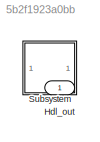
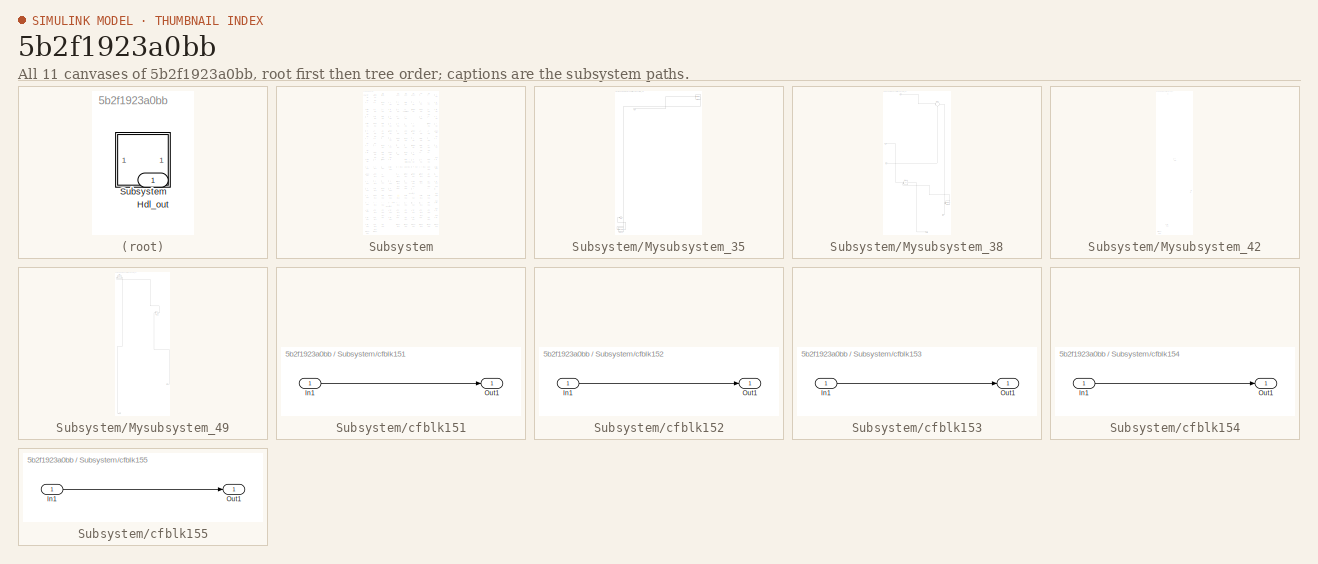
[diagram: thumbnail index - all 11 canvases of the model, root first then tree order]
MODEL slx_5b2f1923a0bb
KIND model
CONFIG AbsTol = auto
CONFIG EnableMultiTasking = off
CONFIG FixedStep = auto
CONFIG MaxStep = auto
CONFIG MinStep = auto
CONFIG RelTol = 1e-3
CONFIG SampleTimeConstraint = Unconstrained
CONFIG SolverName = VariableStepAuto
CONFIG StartTime = 0.0
CONFIG StopTime = 10.0
BLOCK [Outport] Hdl_out
  OutDataTypeStr = uint8
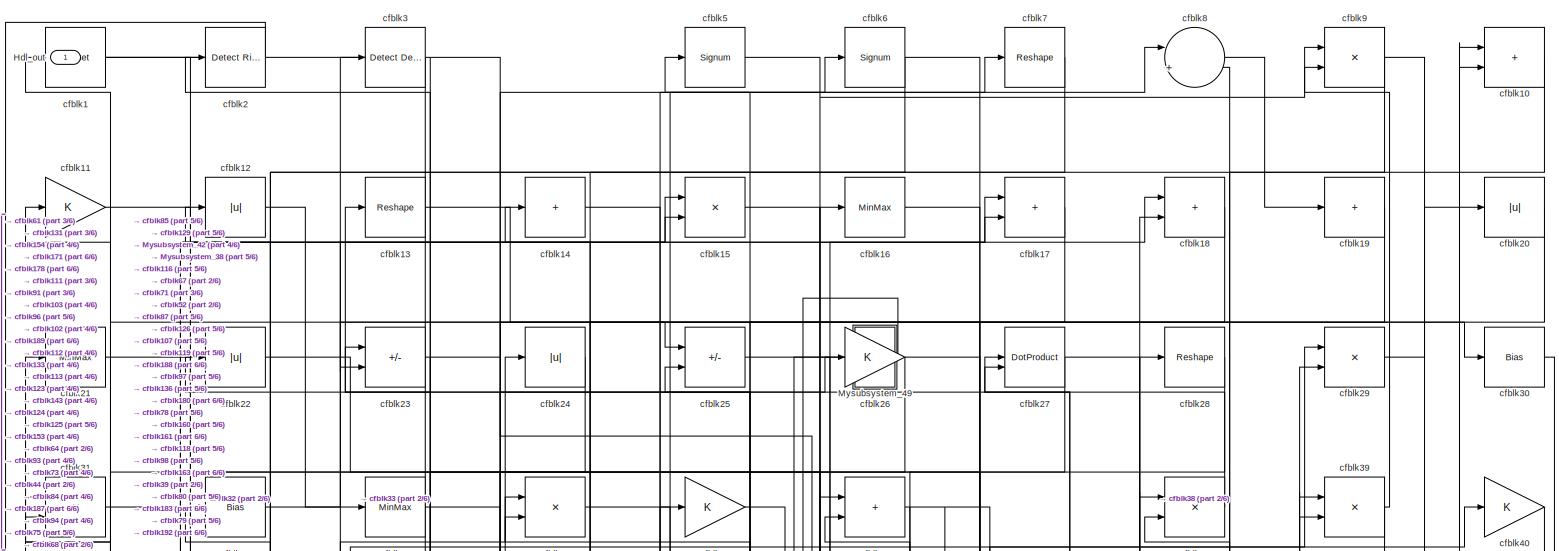
[diagram: Subsystem - part 1/6, full width, top band]
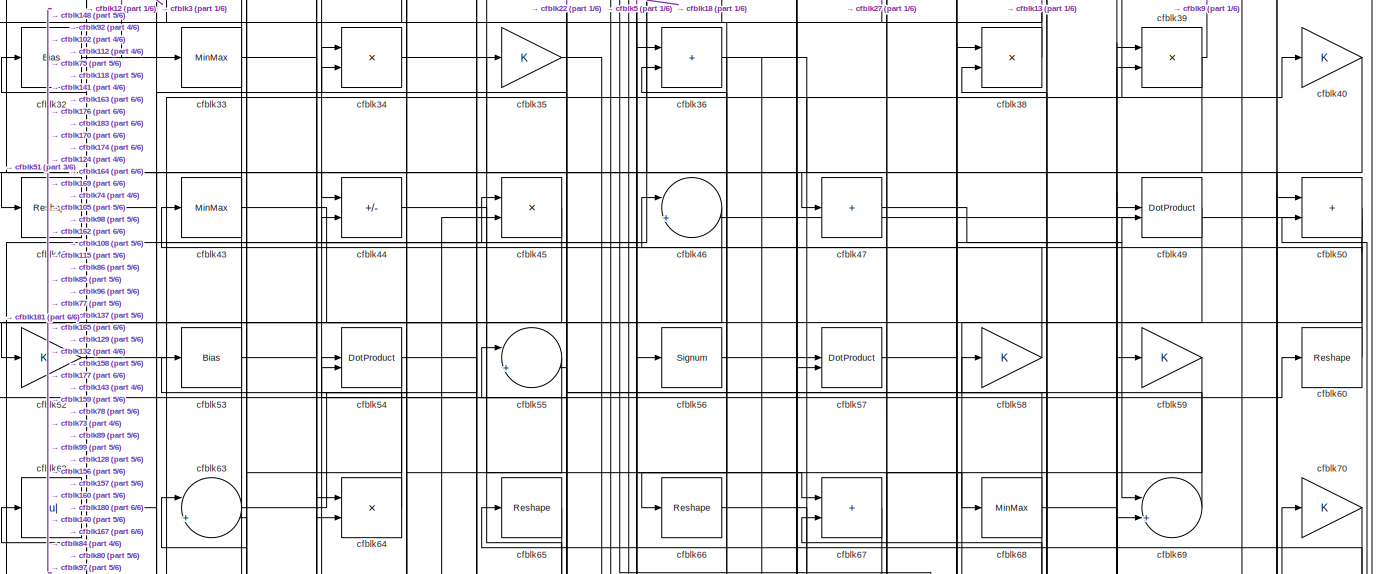
[diagram: Subsystem - part 2/6, full width, top band]
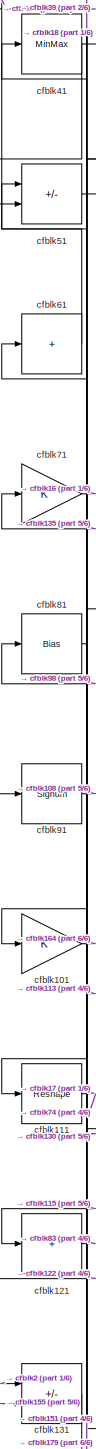
[diagram: Subsystem - part 3/6, middle left region]
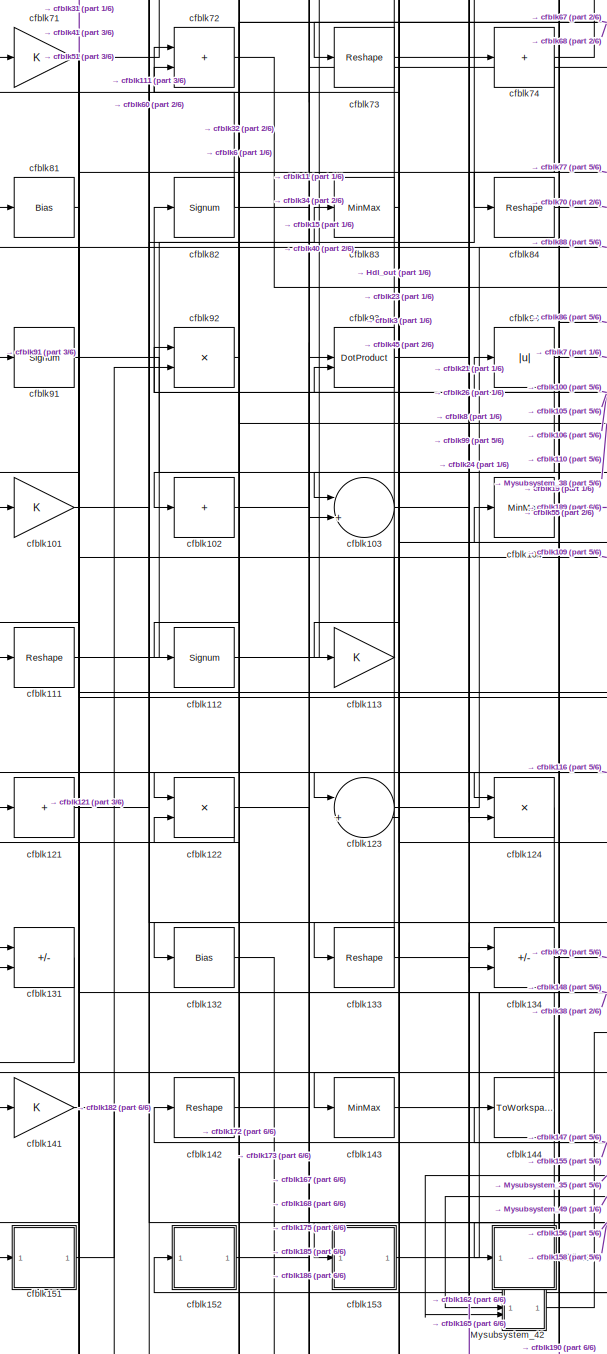
[diagram: Subsystem - part 4/6, middle left region]
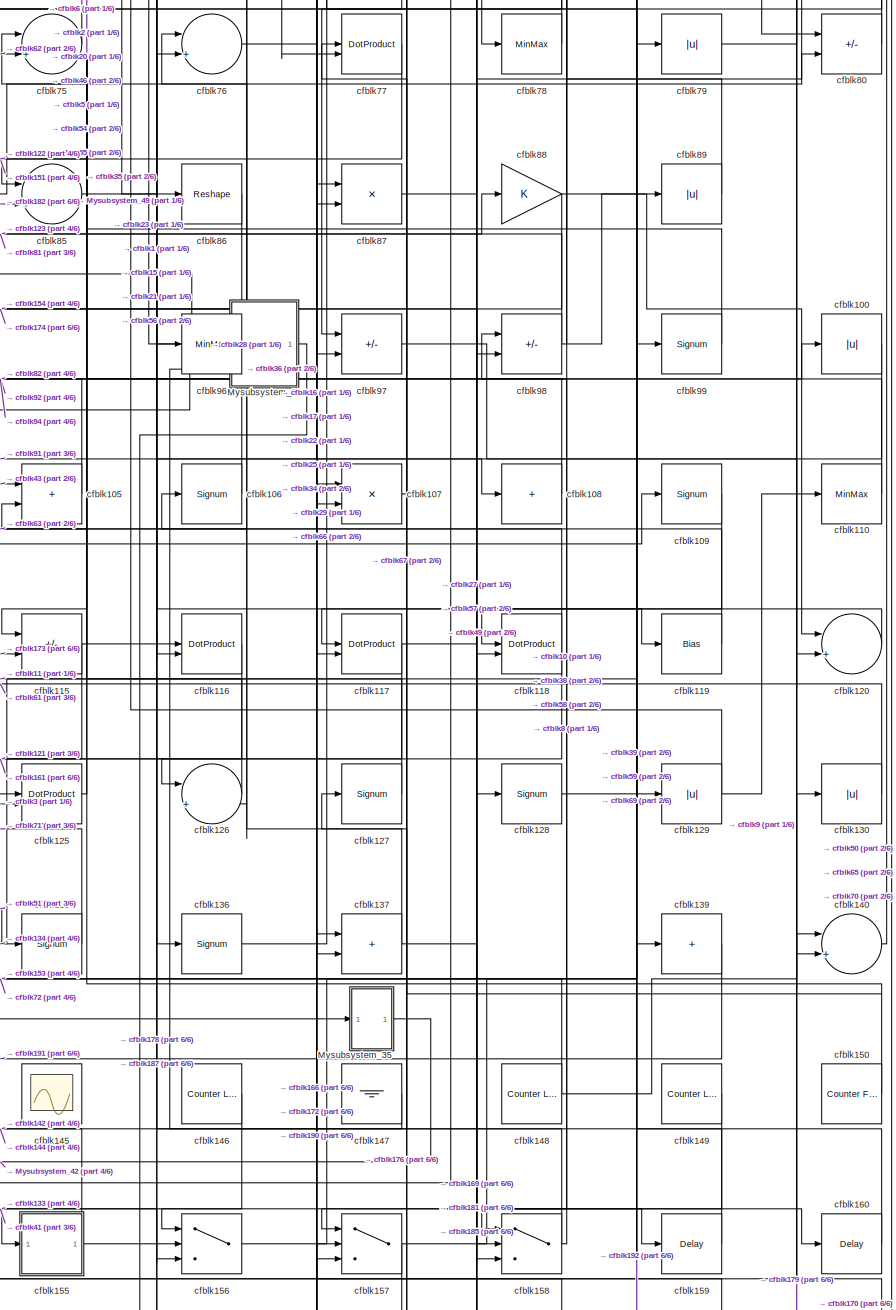
[diagram: Subsystem - part 5/6, middle right region]
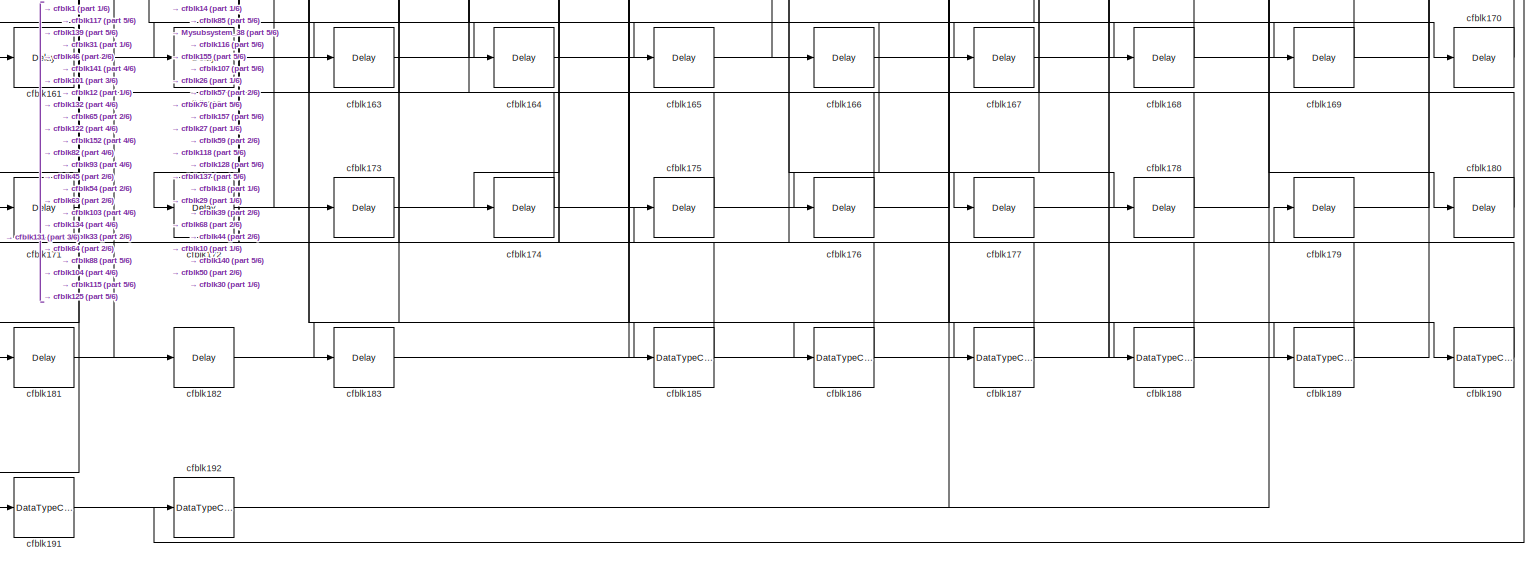
[diagram: Subsystem - part 6/6, full width, bottom band]
BLOCK [SubSystem] Subsystem
BLOCK [Outport] Subsystem/Hdl_out
  OutDataTypeStr = uint8
BLOCK [SubSystem] Subsystem/Mysubsystem_35
  RTWFcnName = Mysubsystem_35
  RTWFcnNameOpts = User specified
  RTWFileNameOpts = Use function name
  RTWSystemCode = Reusable function
  TreatAsAtomicUnit = on
BLOCK [Inport] Subsystem/Mysubsystem_35/In1
BLOCK [Outport] Subsystem/Mysubsystem_35/Out1
BLOCK [DataTypeConversion] Subsystem/Mysubsystem_35/cfblk194
  OutDataTypeStr = uint8
  RndMeth = Floor
  SaturateOnIntegerOverflow = off
BLOCK [MinMax] Subsystem/Mysubsystem_35/cfblk90
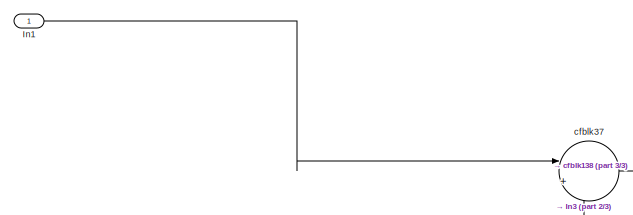
[diagram: Subsystem/Mysubsystem_38 - part 1/3, top center region]
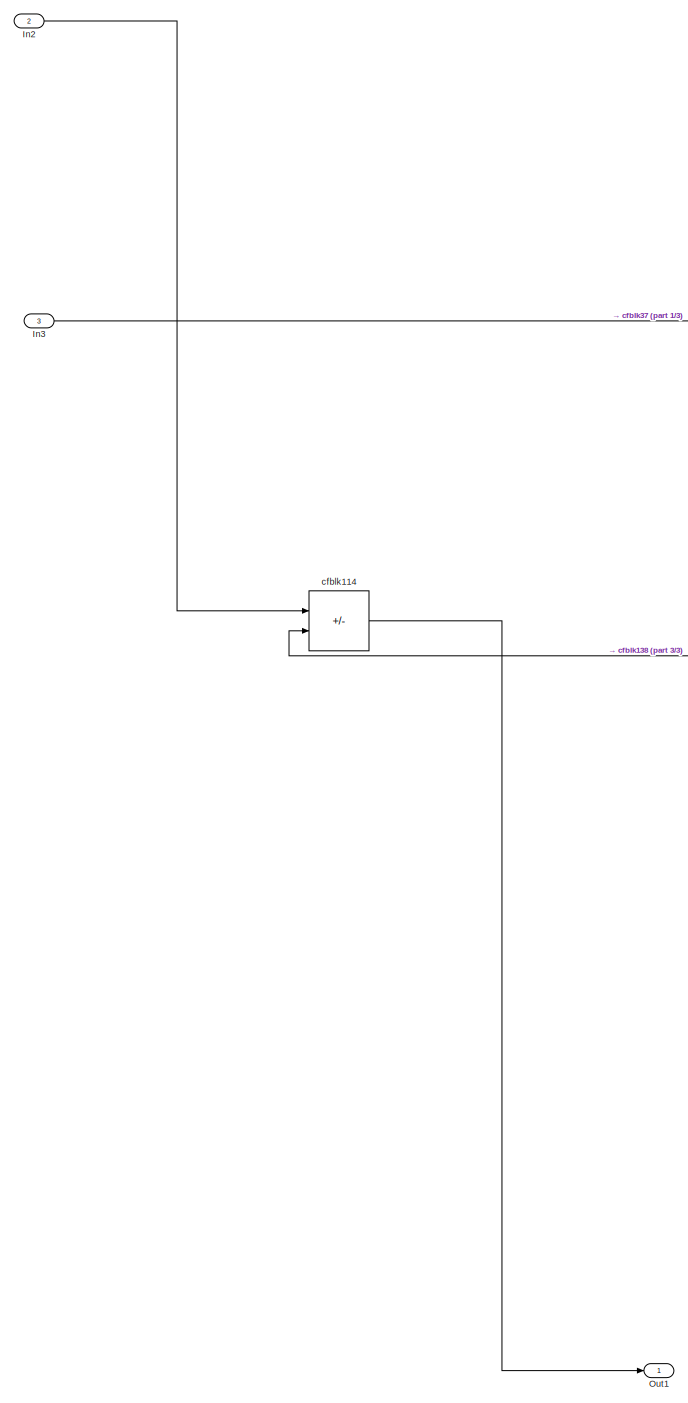
[diagram: Subsystem/Mysubsystem_38 - part 2/3, bottom center region]
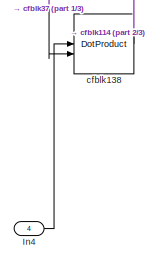
[diagram: Subsystem/Mysubsystem_38 - part 3/3, bottom right region]
BLOCK [SubSystem] Subsystem/Mysubsystem_38
  RTWFcnName = Mysubsystem_38
  RTWFcnNameOpts = User specified
  RTWFileNameOpts = Use function name
  RTWSystemCode = Reusable function
  TreatAsAtomicUnit = on
BLOCK [Inport] Subsystem/Mysubsystem_38/In1
BLOCK [Inport] Subsystem/Mysubsystem_38/In2
  Port = 2
BLOCK [Inport] Subsystem/Mysubsystem_38/In3
  Port = 3
BLOCK [Inport] Subsystem/Mysubsystem_38/In4
  Port = 4
BLOCK [Outport] Subsystem/Mysubsystem_38/Out1
BLOCK [Sum] Subsystem/Mysubsystem_38/cfblk114
  IconShape = rectangular
  Inputs = +-
BLOCK [DotProduct] Subsystem/Mysubsystem_38/cfblk138
  OutDataTypeStr = Inherit: Inherit via internal rule
BLOCK [Sum] Subsystem/Mysubsystem_38/cfblk37
  Inputs = |++
BLOCK [SubSystem] Subsystem/Mysubsystem_42
  RTWFcnName = Mysubsystem_42
  RTWFcnNameOpts = User specified
  RTWFileNameOpts = Use function name
  RTWSystemCode = Reusable function
  TreatAsAtomicUnit = on
BLOCK [Inport] Subsystem/Mysubsystem_42/In1
BLOCK [Inport] Subsystem/Mysubsystem_42/In2
  Port = 2
BLOCK [Outport] Subsystem/Mysubsystem_42/Out1
BLOCK [Delay] Subsystem/Mysubsystem_42/cfblk184
  InputPortMap = u0
  SampleTime = 1
BLOCK [DataTypeConversion] Subsystem/Mysubsystem_42/cfblk193
  OutDataTypeStr = uint8
  RndMeth = Floor
  SaturateOnIntegerOverflow = off
BLOCK [Sum] Subsystem/Mysubsystem_42/cfblk95
  IconShape = rectangular
  Inputs = +-
BLOCK [SubSystem] Subsystem/Mysubsystem_49
  RTWFcnName = Mysubsystem_49
  RTWFcnNameOpts = User specified
  RTWFileNameOpts = Use function name
  RTWSystemCode = Reusable function
  TreatAsAtomicUnit = on
BLOCK [Inport] Subsystem/Mysubsystem_49/In1
BLOCK [Outport] Subsystem/Mysubsystem_49/Y
BLOCK [Reference] Subsystem/Mysubsystem_49/cfblk4  REF=hdlsllib/Logic and Bit
Operations/Detect Fall
Negative
  SourceBlock = hdlsllib/Logic and Bit\nOperations/Detect Fall\nNegative
  SourceType = Detect Fall Negative
BLOCK [Gain] Subsystem/Mysubsystem_49/cfblk48
BLOCK [Reference] Subsystem/cfblk1  REF=simulink/Logic and Bit
Operations/Bit Set
  LibrarySourceBlock = hdlsllib/Logic and Bit\nOperations/Bit Set
  SourceBlock = simulink/Logic and Bit\nOperations/Bit Set
  SourceType = Bit Set
BLOCK [Sum] Subsystem/cfblk10
  IconShape = rectangular
  OutDataTypeStr = uint8
BLOCK [Abs] Subsystem/cfblk100
  OutDataTypeStr = uint8
  SaturateOnIntegerOverflow = off
BLOCK [Gain] Subsystem/cfblk101
  OutDataTypeStr = uint8
BLOCK [Sum] Subsystem/cfblk102
  IconShape = rectangular
  Inputs = +
  OutDataTypeStr = uint8
BLOCK [Sum] Subsystem/cfblk103
  Inputs = |++
  OutDataTypeStr = uint8
BLOCK [MinMax] Subsystem/cfblk104
  OutDataTypeStr = uint8
BLOCK [Sum] Subsystem/cfblk105
  IconShape = rectangular
  OutDataTypeStr = uint8
BLOCK [Signum] Subsystem/cfblk106
BLOCK [Product] Subsystem/cfblk107
  Inputs = */
  OutDataTypeStr = uint8
  RndMeth = Zero
  SaturateOnIntegerOverflow = on
BLOCK [Sum] Subsystem/cfblk108
  IconShape = rectangular
  Inputs = +
  OutDataTypeStr = uint8
BLOCK [Signum] Subsystem/cfblk109
BLOCK [Gain] Subsystem/cfblk11
  OutDataTypeStr = uint8
BLOCK [MinMax] Subsystem/cfblk110
  OutDataTypeStr = uint8
BLOCK [Reshape] Subsystem/cfblk111
BLOCK [Signum] Subsystem/cfblk112
BLOCK [Gain] Subsystem/cfblk113
  OutDataTypeStr = uint8
BLOCK [Sum] Subsystem/cfblk115
  IconShape = rectangular
  Inputs = +-
  OutDataTypeStr = uint8
BLOCK [DotProduct] Subsystem/cfblk116
  OutDataTypeStr = uint8
BLOCK [DotProduct] Subsystem/cfblk117
  OutDataTypeStr = uint8
BLOCK [DotProduct] Subsystem/cfblk118
  OutDataTypeStr = uint8
BLOCK [Bias] Subsystem/cfblk119
  Bias = 0.0
  SaturateOnIntegerOverflow = off
BLOCK [Abs] Subsystem/cfblk12
  OutDataTypeStr = uint8
  SaturateOnIntegerOverflow = off
BLOCK [Sum] Subsystem/cfblk120
  Inputs = |++
  OutDataTypeStr = uint8
BLOCK [Sum] Subsystem/cfblk121
  IconShape = rectangular
  Inputs = +
  OutDataTypeStr = uint8
BLOCK [Product] Subsystem/cfblk122
  Inputs = */
  OutDataTypeStr = uint8
  RndMeth = Zero
  SaturateOnIntegerOverflow = on
BLOCK [Sum] Subsystem/cfblk123
  Inputs = |++
  OutDataTypeStr = uint8
BLOCK [Product] Subsystem/cfblk124
  Inputs = */
  OutDataTypeStr = uint8
  RndMeth = Zero
  SaturateOnIntegerOverflow = on
BLOCK [DotProduct] Subsystem/cfblk125
  OutDataTypeStr = uint8
BLOCK [Sum] Subsystem/cfblk126
  Inputs = |++
  OutDataTypeStr = uint8
BLOCK [Signum] Subsystem/cfblk127
BLOCK [Signum] Subsystem/cfblk128
BLOCK [Abs] Subsystem/cfblk129
  OutDataTypeStr = uint8
  SaturateOnIntegerOverflow = off
BLOCK [Reshape] Subsystem/cfblk13
BLOCK [Abs] Subsystem/cfblk130
  OutDataTypeStr = uint8
  SaturateOnIntegerOverflow = off
BLOCK [Sum] Subsystem/cfblk131
  IconShape = rectangular
  Inputs = +-
  OutDataTypeStr = uint8
BLOCK [Bias] Subsystem/cfblk132
  Bias = 0.0
  SaturateOnIntegerOverflow = off
BLOCK [Reshape] Subsystem/cfblk133
BLOCK [Sum] Subsystem/cfblk134
  IconShape = rectangular
  Inputs = +-
  OutDataTypeStr = uint8
BLOCK [Signum] Subsystem/cfblk135
BLOCK [Signum] Subsystem/cfblk136
BLOCK [Sum] Subsystem/cfblk137
  IconShape = rectangular
  OutDataTypeStr = uint8
BLOCK [Sum] Subsystem/cfblk139
  IconShape = rectangular
  Inputs = +
  OutDataTypeStr = uint8
BLOCK [Sum] Subsystem/cfblk14
  IconShape = rectangular
  Inputs = +
  OutDataTypeStr = uint8
BLOCK [Sum] Subsystem/cfblk140
  Inputs = |++
  OutDataTypeStr = uint8
BLOCK [Gain] Subsystem/cfblk141
  OutDataTypeStr = uint8
BLOCK [Reshape] Subsystem/cfblk142
BLOCK [MinMax] Subsystem/cfblk143
  OutDataTypeStr = uint8
BLOCK [ToWorkspace] Subsystem/cfblk144
  MaxDataPoints = inf
  SampleTime = -1
  SaveFormat = Timeseries
  VariableName = simout
BLOCK [Scope] Subsystem/cfblk145
  Floating = on
  NumInputPorts = 1
  ScopeSpecificationString = Simulink.scopes.TimeScopeBlockCfg('CurrentConfiguration', extmgr.ConfigurationSet(extmgr.Configuration('Core','General UI',true,'FigureColor',[0.156862745098039 0.156862745098039 0.156862745098039]),extmgr.Configuration('Core','Source UI',true),extmgr.Configuration('Sources','WiredSimulink',true,'DataLoggingSaveFormat','StructureWithTime','DataLoggingLimitDataPoints',true,'DataLoggingDecimation','...<+2674ch>
BLOCK [Reference] Subsystem/cfblk146  REF=hdlsllib/Sources/Counter
Limited
  SourceBlock = hdlsllib/Sources/Counter\nLimited
  SourceType = Counter Limited
BLOCK [Ground] Subsystem/cfblk147
BLOCK [Reference] Subsystem/cfblk148  REF=hdlsllib/Sources/Counter
Limited
  SourceBlock = hdlsllib/Sources/Counter\nLimited
  SourceType = Counter Limited
BLOCK [Reference] Subsystem/cfblk149  REF=hdlsllib/Sources/Counter
Limited
  SourceBlock = hdlsllib/Sources/Counter\nLimited
  SourceType = Counter Limited
BLOCK [Product] Subsystem/cfblk15
  Inputs = */
  OutDataTypeStr = uint8
  RndMeth = Zero
  SaturateOnIntegerOverflow = on
BLOCK [Reference] Subsystem/cfblk150  REF=hdlsllib/Sources/Counter
Free-Running
  SourceBlock = hdlsllib/Sources/Counter\nFree-Running
  SourceType = Counter Free-Running
BLOCK [SubSystem] Subsystem/cfblk151
  LibrarySourceBlock = hdlsllib/Ports &\nSubsystems/Subsystem
BLOCK [Inport] Subsystem/cfblk151/In1
BLOCK [Outport] Subsystem/cfblk151/Out1
BLOCK [SubSystem] Subsystem/cfblk152
  LibrarySourceBlock = hdlsllib/Ports &\nSubsystems/Subsystem
BLOCK [Inport] Subsystem/cfblk152/In1
BLOCK [Outport] Subsystem/cfblk152/Out1
BLOCK [SubSystem] Subsystem/cfblk153
  LibrarySourceBlock = hdlsllib/Ports &\nSubsystems/Subsystem
BLOCK [Inport] Subsystem/cfblk153/In1
BLOCK [Outport] Subsystem/cfblk153/Out1
BLOCK [SubSystem] Subsystem/cfblk154
  LibrarySourceBlock = hdlsllib/Ports &\nSubsystems/Subsystem
BLOCK [Inport] Subsystem/cfblk154/In1
BLOCK [Outport] Subsystem/cfblk154/Out1
BLOCK [SubSystem] Subsystem/cfblk155
  LibrarySourceBlock = hdlsllib/Ports &\nSubsystems/Subsystem
BLOCK [Inport] Subsystem/cfblk155/In1
BLOCK [Outport] Subsystem/cfblk155/Out1
BLOCK [Switch] Subsystem/cfblk156
  InputSameDT = off
  OutDataTypeStr = uint8
  SaturateOnIntegerOverflow = off
BLOCK [Switch] Subsystem/cfblk157
  InputSameDT = off
  OutDataTypeStr = uint8
  SaturateOnIntegerOverflow = off
BLOCK [Switch] Subsystem/cfblk158
  InputSameDT = off
  OutDataTypeStr = uint8
  SaturateOnIntegerOverflow = off
BLOCK [Delay] Subsystem/cfblk159
  InputPortMap = u0
  SampleTime = 1
BLOCK [MinMax] Subsystem/cfblk16
  OutDataTypeStr = uint8
BLOCK [Delay] Subsystem/cfblk160
  InputPortMap = u0
  SampleTime = 1
BLOCK [Delay] Subsystem/cfblk161
  InputPortMap = u0
  SampleTime = 1
BLOCK [Delay] Subsystem/cfblk162
  InputPortMap = u0
  SampleTime = 1
BLOCK [Delay] Subsystem/cfblk163
  InputPortMap = u0
  SampleTime = 1
BLOCK [Delay] Subsystem/cfblk164
  InputPortMap = u0
  SampleTime = 1
BLOCK [Delay] Subsystem/cfblk165
  InputPortMap = u0
  SampleTime = 1
BLOCK [Delay] Subsystem/cfblk166
  InputPortMap = u0
  SampleTime = 1
BLOCK [Delay] Subsystem/cfblk167
  InputPortMap = u0
  SampleTime = 1
BLOCK [Delay] Subsystem/cfblk168
  InputPortMap = u0
  SampleTime = 1
BLOCK [Delay] Subsystem/cfblk169
  InputPortMap = u0
  SampleTime = 1
BLOCK [Sum] Subsystem/cfblk17
  IconShape = rectangular
  OutDataTypeStr = uint8
BLOCK [Delay] Subsystem/cfblk170
  InputPortMap = u0
  SampleTime = 1
BLOCK [Delay] Subsystem/cfblk171
  InputPortMap = u0
  SampleTime = 1
BLOCK [Delay] Subsystem/cfblk172
  InputPortMap = u0
  SampleTime = 1
BLOCK [Delay] Subsystem/cfblk173
  InputPortMap = u0
  SampleTime = 1
BLOCK [Delay] Subsystem/cfblk174
  InputPortMap = u0
  SampleTime = 1
BLOCK [Delay] Subsystem/cfblk175
  InputPortMap = u0
  SampleTime = 1
BLOCK [Delay] Subsystem/cfblk176
  InputPortMap = u0
  SampleTime = 1
BLOCK [Delay] Subsystem/cfblk177
  InputPortMap = u0
  SampleTime = 1
BLOCK [Delay] Subsystem/cfblk178
  InputPortMap = u0
  SampleTime = 1
BLOCK [Delay] Subsystem/cfblk179
  InputPortMap = u0
  SampleTime = 1
BLOCK [Sum] Subsystem/cfblk18
  IconShape = rectangular
  OutDataTypeStr = uint8
BLOCK [Delay] Subsystem/cfblk180
  InputPortMap = u0
  SampleTime = 1
BLOCK [Delay] Subsystem/cfblk181
  InputPortMap = u0
  SampleTime = 1
BLOCK [Delay] Subsystem/cfblk182
  InputPortMap = u0
  SampleTime = 1
BLOCK [Delay] Subsystem/cfblk183
  InputPortMap = u0
  SampleTime = 1
BLOCK [DataTypeConversion] Subsystem/cfblk185
  OutDataTypeStr = uint8
  RndMeth = Floor
  SaturateOnIntegerOverflow = off
BLOCK [DataTypeConversion] Subsystem/cfblk186
  OutDataTypeStr = uint8
  RndMeth = Floor
  SaturateOnIntegerOverflow = off
BLOCK [DataTypeConversion] Subsystem/cfblk187
  OutDataTypeStr = uint8
  RndMeth = Floor
  SaturateOnIntegerOverflow = off
BLOCK [DataTypeConversion] Subsystem/cfblk188
  OutDataTypeStr = uint8
  RndMeth = Floor
  SaturateOnIntegerOverflow = off
BLOCK [DataTypeConversion] Subsystem/cfblk189
  OutDataTypeStr = uint8
  RndMeth = Floor
  SaturateOnIntegerOverflow = off
BLOCK [Sum] Subsystem/cfblk19
  IconShape = rectangular
  Inputs = +
  OutDataTypeStr = uint8
BLOCK [DataTypeConversion] Subsystem/cfblk190
  OutDataTypeStr = uint8
  RndMeth = Floor
  SaturateOnIntegerOverflow = off
BLOCK [DataTypeConversion] Subsystem/cfblk191
  OutDataTypeStr = uint8
  RndMeth = Floor
  SaturateOnIntegerOverflow = off
BLOCK [DataTypeConversion] Subsystem/cfblk192
  OutDataTypeStr = uint8
  RndMeth = Floor
  SaturateOnIntegerOverflow = off
BLOCK [Reference] Subsystem/cfblk2  REF=hdlsllib/Logic and Bit
Operations/Detect Rise
Positive
  SourceBlock = hdlsllib/Logic and Bit\nOperations/Detect Rise\nPositive
  SourceType = Detect Rise Positive
BLOCK [Abs] Subsystem/cfblk20
  OutDataTypeStr = uint8
  SaturateOnIntegerOverflow = off
BLOCK [MinMax] Subsystem/cfblk21
  OutDataTypeStr = uint8
BLOCK [Abs] Subsystem/cfblk22
  OutDataTypeStr = uint8
  SaturateOnIntegerOverflow = off
BLOCK [Sum] Subsystem/cfblk23
  IconShape = rectangular
  Inputs = +-
  OutDataTypeStr = uint8
BLOCK [Abs] Subsystem/cfblk24
  OutDataTypeStr = uint8
  SaturateOnIntegerOverflow = off
BLOCK [Sum] Subsystem/cfblk25
  IconShape = rectangular
  Inputs = +-
  OutDataTypeStr = uint8
BLOCK [Gain] Subsystem/cfblk26
  OutDataTypeStr = uint8
BLOCK [DotProduct] Subsystem/cfblk27
  OutDataTypeStr = uint8
BLOCK [Reshape] Subsystem/cfblk28
BLOCK [Product] Subsystem/cfblk29
  Inputs = */
  OutDataTypeStr = uint8
  RndMeth = Zero
  SaturateOnIntegerOverflow = on
BLOCK [Reference] Subsystem/cfblk3  REF=simulink/Logic and Bit
Operations/Detect
Decrease
  LibrarySourceBlock = hdlsllib/Logic and Bit\nOperations/Detect\nDecrease
  SourceBlock = simulink/Logic and Bit\nOperations/Detect\nDecrease
  SourceType = Detect Decrease
BLOCK [Bias] Subsystem/cfblk30
  Bias = 0.0
  SaturateOnIntegerOverflow = off
BLOCK [Product] Subsystem/cfblk31
  Inputs = */
  OutDataTypeStr = uint8
  RndMeth = Zero
  SaturateOnIntegerOverflow = on
BLOCK [Bias] Subsystem/cfblk32
  Bias = 0.0
  SaturateOnIntegerOverflow = off
BLOCK [MinMax] Subsystem/cfblk33
  OutDataTypeStr = uint8
BLOCK [Product] Subsystem/cfblk34
  Inputs = */
  OutDataTypeStr = uint8
  RndMeth = Zero
  SaturateOnIntegerOverflow = on
BLOCK [Gain] Subsystem/cfblk35
  OutDataTypeStr = uint8
BLOCK [Sum] Subsystem/cfblk36
  IconShape = rectangular
  OutDataTypeStr = uint8
BLOCK [Product] Subsystem/cfblk38
  Inputs = */
  OutDataTypeStr = uint8
  RndMeth = Zero
  SaturateOnIntegerOverflow = on
BLOCK [Product] Subsystem/cfblk39
  Inputs = */
  OutDataTypeStr = uint8
  RndMeth = Zero
  SaturateOnIntegerOverflow = on
BLOCK [Gain] Subsystem/cfblk40
  OutDataTypeStr = uint8
BLOCK [MinMax] Subsystem/cfblk41
  OutDataTypeStr = uint8
BLOCK [Reshape] Subsystem/cfblk42
BLOCK [MinMax] Subsystem/cfblk43
  OutDataTypeStr = uint8
BLOCK [Sum] Subsystem/cfblk44
  IconShape = rectangular
  Inputs = +-
  OutDataTypeStr = uint8
BLOCK [Product] Subsystem/cfblk45
  Inputs = */
  OutDataTypeStr = uint8
  RndMeth = Zero
  SaturateOnIntegerOverflow = on
BLOCK [Sum] Subsystem/cfblk46
  Inputs = |++
  OutDataTypeStr = uint8
BLOCK [Sum] Subsystem/cfblk47
  IconShape = rectangular
  Inputs = +
  OutDataTypeStr = uint8
BLOCK [DotProduct] Subsystem/cfblk49
  OutDataTypeStr = uint8
BLOCK [Signum] Subsystem/cfblk5
BLOCK [Sum] Subsystem/cfblk50
  IconShape = rectangular
  OutDataTypeStr = uint8
BLOCK [Sum] Subsystem/cfblk51
  IconShape = rectangular
  Inputs = +-
  OutDataTypeStr = uint8
BLOCK [Gain] Subsystem/cfblk52
  OutDataTypeStr = uint8
BLOCK [Bias] Subsystem/cfblk53
  Bias = 0.0
  SaturateOnIntegerOverflow = off
BLOCK [DotProduct] Subsystem/cfblk54
  OutDataTypeStr = uint8
BLOCK [Sum] Subsystem/cfblk55
  Inputs = |++
  OutDataTypeStr = uint8
BLOCK [Signum] Subsystem/cfblk56
BLOCK [DotProduct] Subsystem/cfblk57
  OutDataTypeStr = uint8
BLOCK [Gain] Subsystem/cfblk58
  OutDataTypeStr = uint8
BLOCK [Gain] Subsystem/cfblk59
  OutDataTypeStr = uint8
BLOCK [Signum] Subsystem/cfblk6
BLOCK [Reshape] Subsystem/cfblk60
BLOCK [Sum] Subsystem/cfblk61
  IconShape = rectangular
  Inputs = +
  OutDataTypeStr = uint8
BLOCK [Abs] Subsystem/cfblk62
  OutDataTypeStr = uint8
  SaturateOnIntegerOverflow = off
BLOCK [Sum] Subsystem/cfblk63
  Inputs = |++
  OutDataTypeStr = uint8
BLOCK [Product] Subsystem/cfblk64
  Inputs = */
  OutDataTypeStr = uint8
  RndMeth = Zero
  SaturateOnIntegerOverflow = on
BLOCK [Reshape] Subsystem/cfblk65
BLOCK [Reshape] Subsystem/cfblk66
BLOCK [Sum] Subsystem/cfblk67
  IconShape = rectangular
  OutDataTypeStr = uint8
BLOCK [MinMax] Subsystem/cfblk68
  OutDataTypeStr = uint8
BLOCK [Sum] Subsystem/cfblk69
  Inputs = |++
  OutDataTypeStr = uint8
BLOCK [Reshape] Subsystem/cfblk7
BLOCK [Gain] Subsystem/cfblk70
  OutDataTypeStr = uint8
BLOCK [Gain] Subsystem/cfblk71
  OutDataTypeStr = uint8
BLOCK [Sum] Subsystem/cfblk72
  IconShape = rectangular
  OutDataTypeStr = uint8
BLOCK [Reshape] Subsystem/cfblk73
BLOCK [Sum] Subsystem/cfblk74
  IconShape = rectangular
  Inputs = +
  OutDataTypeStr = uint8
BLOCK [Sum] Subsystem/cfblk75
  Inputs = |++
  OutDataTypeStr = uint8
BLOCK [Sum] Subsystem/cfblk76
  Inputs = |++
  OutDataTypeStr = uint8
BLOCK [DotProduct] Subsystem/cfblk77
  OutDataTypeStr = uint8
BLOCK [MinMax] Subsystem/cfblk78
  OutDataTypeStr = uint8
BLOCK [Abs] Subsystem/cfblk79
  OutDataTypeStr = uint8
  SaturateOnIntegerOverflow = off
BLOCK [Sum] Subsystem/cfblk8
  Inputs = |++
  OutDataTypeStr = uint8
BLOCK [Sum] Subsystem/cfblk80
  IconShape = rectangular
  Inputs = +-
  OutDataTypeStr = uint8
BLOCK [Bias] Subsystem/cfblk81
  Bias = 0.0
  SaturateOnIntegerOverflow = off
BLOCK [Signum] Subsystem/cfblk82
BLOCK [MinMax] Subsystem/cfblk83
  OutDataTypeStr = uint8
BLOCK [Reshape] Subsystem/cfblk84
BLOCK [Sum] Subsystem/cfblk85
  Inputs = |++
  OutDataTypeStr = uint8
BLOCK [Reshape] Subsystem/cfblk86
BLOCK [Product] Subsystem/cfblk87
  Inputs = */
  OutDataTypeStr = uint8
  RndMeth = Zero
  SaturateOnIntegerOverflow = on
BLOCK [Gain] Subsystem/cfblk88
  OutDataTypeStr = uint8
BLOCK [Abs] Subsystem/cfblk89
  OutDataTypeStr = uint8
  SaturateOnIntegerOverflow = off
BLOCK [Product] Subsystem/cfblk9
  Inputs = */
  OutDataTypeStr = uint8
  RndMeth = Zero
  SaturateOnIntegerOverflow = on
BLOCK [Signum] Subsystem/cfblk91
BLOCK [Product] Subsystem/cfblk92
  Inputs = */
  OutDataTypeStr = uint8
  RndMeth = Zero
  SaturateOnIntegerOverflow = on
BLOCK [DotProduct] Subsystem/cfblk93
  OutDataTypeStr = uint8
BLOCK [Abs] Subsystem/cfblk94
  OutDataTypeStr = uint8
  SaturateOnIntegerOverflow = off
BLOCK [MinMax] Subsystem/cfblk96
  OutDataTypeStr = uint8
BLOCK [Sum] Subsystem/cfblk97
  IconShape = rectangular
  Inputs = +-
  OutDataTypeStr = uint8
BLOCK [Sum] Subsystem/cfblk98
  IconShape = rectangular
  Inputs = +-
  OutDataTypeStr = uint8
BLOCK [Signum] Subsystem/cfblk99
LINE Subsystem/Mysubsystem_35/In1:1 -> Subsystem/Mysubsystem_35/cfblk90:1
LINE Subsystem/Mysubsystem_35/cfblk194:1 -> Subsystem/Mysubsystem_35/Out1:1
LINE Subsystem/Mysubsystem_35/cfblk90:1 -> Subsystem/Mysubsystem_35/cfblk194:1
LINE Subsystem/Mysubsystem_35:1 -> Subsystem/Mysubsystem_42:2
LINE Subsystem/Mysubsystem_38/In1:1 -> Subsystem/Mysubsystem_38/cfblk37:1
LINE Subsystem/Mysubsystem_38/In2:1 -> Subsystem/Mysubsystem_38/cfblk114:1
LINE Subsystem/Mysubsystem_38/In3:1 -> Subsystem/Mysubsystem_38/cfblk37:2
LINE Subsystem/Mysubsystem_38/In4:1 -> Subsystem/Mysubsystem_38/cfblk138:1
LINE Subsystem/Mysubsystem_38/cfblk114:1 -> Subsystem/Mysubsystem_38/Out1:1
LINE Subsystem/Mysubsystem_38/cfblk138:1 -> Subsystem/Mysubsystem_38/cfblk114:2
LINE Subsystem/Mysubsystem_38/cfblk37:1 -> Subsystem/Mysubsystem_38/cfblk138:2
LINE Subsystem/Mysubsystem_38:1 -> Subsystem/cfblk166:1
LINE Subsystem/Mysubsystem_42/In1:1 -> Subsystem/Mysubsystem_42/cfblk95:1
LINE Subsystem/Mysubsystem_42/In2:1 -> Subsystem/Mysubsystem_42/cfblk184:1
LINE Subsystem/Mysubsystem_42/cfblk184:1 -> Subsystem/Mysubsystem_42/cfblk193:1
LINE Subsystem/Mysubsystem_42/cfblk193:1 -> Subsystem/Mysubsystem_42/cfblk95:2
LINE Subsystem/Mysubsystem_42/cfblk95:1 -> Subsystem/Mysubsystem_42/Out1:1
LINE Subsystem/Mysubsystem_42:1 -> Subsystem/Mysubsystem_35:1
LINE Subsystem/Mysubsystem_49/In1:1 -> Subsystem/Mysubsystem_49/cfblk48:1
LINE Subsystem/Mysubsystem_49/cfblk48:1 -> Subsystem/Mysubsystem_49/cfblk4:1
LINE Subsystem/Mysubsystem_49/cfblk4:1 -> Subsystem/Mysubsystem_49/Y:1
LINE Subsystem/Mysubsystem_49:1 -> Subsystem/Mysubsystem_42:1
LINE Subsystem/cfblk100:1 -> Subsystem/cfblk156:3
LINE Subsystem/cfblk101:1 -> Subsystem/cfblk164:1
LINE Subsystem/cfblk102:1 -> Subsystem/cfblk34:1
LINE Subsystem/cfblk103:1 -> Subsystem/cfblk165:1
LINE Subsystem/cfblk104:1 -> Subsystem/cfblk189:1
LINE Subsystem/cfblk105:1 -> Subsystem/cfblk92:1
LINE Subsystem/cfblk106:1 -> Subsystem/cfblk82:1
LINE Subsystem/cfblk107:1 -> Subsystem/cfblk77:1
LINE Subsystem/cfblk108:1 -> Subsystem/cfblk55:1
LINE Subsystem/cfblk109:1 -> Subsystem/cfblk158:1
LINE Subsystem/cfblk10:1 -> Subsystem/cfblk118:1
LINE Subsystem/cfblk110:1 -> Subsystem/cfblk94:1
NET Subsystem/cfblk111:1 -> Subsystem/cfblk17:2, Subsystem/cfblk74:1
NET Subsystem/cfblk112:1 -> Subsystem/cfblk15:2, Subsystem/cfblk40:1
LINE Subsystem/cfblk113:1 -> Subsystem/cfblk51:1
NET Subsystem/cfblk115:1 -> Subsystem/cfblk121:1, Subsystem/cfblk55:2, Subsystem/cfblk76:2
LINE Subsystem/cfblk116:1 -> Subsystem/cfblk123:1
NET Subsystem/cfblk117:1 -> Subsystem/cfblk161:1, Subsystem/cfblk80:2
NET Subsystem/cfblk118:1 -> Subsystem/cfblk126:2, Subsystem/cfblk63:1
NET Subsystem/cfblk119:1 -> Subsystem/cfblk23:1, Subsystem/cfblk2:1, Subsystem/cfblk5:1
LINE Subsystem/cfblk11:1 -> Subsystem/cfblk103:2
LINE Subsystem/cfblk120:1 -> Subsystem/cfblk117:1
LINE Subsystem/cfblk121:1 -> Subsystem/cfblk83:1
NET Subsystem/cfblk122:1 -> Subsystem/cfblk186:1, Subsystem/cfblk91:1
LINE Subsystem/cfblk123:1 -> Subsystem/cfblk88:1
LINE Subsystem/cfblk124:1 -> Subsystem/cfblk153:1
LINE Subsystem/cfblk125:1 -> Subsystem/cfblk25:2
LINE Subsystem/cfblk126:1 -> Subsystem/cfblk11:1
LINE Subsystem/cfblk127:1 -> Subsystem/cfblk105:2
LINE Subsystem/cfblk128:1 -> Subsystem/cfblk59:1
NET Subsystem/cfblk129:1 -> Subsystem/Mysubsystem_49:1, Subsystem/cfblk110:1
LINE Subsystem/cfblk12:1 -> Subsystem/cfblk33:1
LINE Subsystem/cfblk130:1 -> Subsystem/cfblk61:1
LINE Subsystem/cfblk131:1 -> Subsystem/cfblk179:1
NET Subsystem/cfblk132:1 -> Subsystem/cfblk172:1, Subsystem/cfblk173:1
NET Subsystem/cfblk133:1 -> Subsystem/Hdl_out:1, Subsystem/cfblk156:2
LINE Subsystem/cfblk134:1 -> Subsystem/cfblk79:1
LINE Subsystem/cfblk135:1 -> Subsystem/cfblk71:1
LINE Subsystem/cfblk136:1 -> Subsystem/cfblk29:1
NET Subsystem/cfblk137:1 -> Subsystem/cfblk106:1, Subsystem/cfblk169:1, Subsystem/cfblk76:1
LINE Subsystem/cfblk139:1 -> Subsystem/cfblk191:1
LINE Subsystem/cfblk13:1 -> Subsystem/cfblk25:1
LINE Subsystem/cfblk140:1 -> Subsystem/cfblk50:2
NET Subsystem/cfblk141:1 -> Subsystem/cfblk182:1, Subsystem/cfblk60:1
NET Subsystem/cfblk142:1 -> Subsystem/cfblk100:1, Subsystem/cfblk109:1, Subsystem/cfblk158:3
LINE Subsystem/cfblk143:1 -> Subsystem/cfblk38:1
LINE Subsystem/cfblk146:1 -> Subsystem/cfblk156:1
LINE Subsystem/cfblk147:1 -> Subsystem/cfblk142:1
NET Subsystem/cfblk148:1 -> Subsystem/cfblk130:1, Subsystem/cfblk62:1, Subsystem/cfblk72:1
LINE Subsystem/cfblk149:1 -> Subsystem/cfblk157:1
LINE Subsystem/cfblk14:1 -> Subsystem/cfblk187:1
NET Subsystem/cfblk150:1 -> Subsystem/cfblk127:1, Subsystem/cfblk75:1
LINE Subsystem/cfblk151/In1:1 -> Subsystem/cfblk151/Out1:1
NET Subsystem/cfblk151:1 -> Subsystem/cfblk41:1, Subsystem/cfblk92:2
LINE Subsystem/cfblk152/In1:1 -> Subsystem/cfblk152/Out1:1
LINE Subsystem/cfblk152:1 -> Subsystem/cfblk185:1
LINE Subsystem/cfblk153/In1:1 -> Subsystem/cfblk153/Out1:1
NET Subsystem/cfblk153:1 -> Subsystem/cfblk8:1, Subsystem/cfblk99:1
LINE Subsystem/cfblk154/In1:1 -> Subsystem/cfblk154/Out1:1
LINE Subsystem/cfblk154:1 -> Subsystem/cfblk31:1
LINE Subsystem/cfblk155/In1:1 -> Subsystem/cfblk155/Out1:1
NET Subsystem/cfblk155:1 -> Subsystem/cfblk144:1, Subsystem/cfblk178:1
LINE Subsystem/cfblk156:1 -> Subsystem/cfblk39:1
NET Subsystem/cfblk157:1 -> Subsystem/cfblk176:1, Subsystem/cfblk69:2
NET Subsystem/cfblk158:1 -> Subsystem/Mysubsystem_38:4, Subsystem/cfblk67:2, Subsystem/cfblk98:1
LINE Subsystem/cfblk159:1 -> Subsystem/cfblk36:1
LINE Subsystem/cfblk15:1 -> Subsystem/cfblk136:1
LINE Subsystem/cfblk160:1 -> Subsystem/cfblk49:1
LINE Subsystem/cfblk161:1 -> Subsystem/cfblk18:2
LINE Subsystem/cfblk162:1 -> Subsystem/cfblk134:1
LINE Subsystem/cfblk163:1 -> Subsystem/cfblk29:2
LINE Subsystem/cfblk164:1 -> Subsystem/cfblk54:2
LINE Subsystem/cfblk165:1 -> Subsystem/cfblk57:2
LINE Subsystem/cfblk166:1 -> Subsystem/cfblk107:1
LINE Subsystem/cfblk167:1 -> Subsystem/cfblk50:1
LINE Subsystem/cfblk168:1 -> Subsystem/cfblk122:2
LINE Subsystem/cfblk169:1 -> Subsystem/cfblk44:2
LINE Subsystem/cfblk16:1 -> Subsystem/cfblk97:2
LINE Subsystem/cfblk170:1 -> Subsystem/cfblk137:1
LINE Subsystem/cfblk171:1 -> Subsystem/cfblk1:1
LINE Subsystem/cfblk172:1 -> Subsystem/cfblk157:2
LINE Subsystem/cfblk173:1 -> Subsystem/cfblk115:2
LINE Subsystem/cfblk174:1 -> Subsystem/cfblk64:1
LINE Subsystem/cfblk175:1 -> Subsystem/cfblk93:1
LINE Subsystem/cfblk176:1 -> Subsystem/cfblk63:2
LINE Subsystem/cfblk177:1 -> Subsystem/cfblk39:2
LINE Subsystem/cfblk178:1 -> Subsystem/cfblk31:2
LINE Subsystem/cfblk179:1 -> Subsystem/cfblk140:1
NET Subsystem/cfblk17:1 -> Subsystem/cfblk23:2, Subsystem/cfblk87:2
LINE Subsystem/cfblk180:1 -> Subsystem/cfblk27:2
LINE Subsystem/cfblk181:1 -> Subsystem/cfblk118:2
LINE Subsystem/cfblk182:1 -> Subsystem/cfblk85:2
LINE Subsystem/cfblk183:1 -> Subsystem/cfblk10:2
NET Subsystem/cfblk185:1 -> Subsystem/cfblk125:1, Subsystem/cfblk128:1
LINE Subsystem/cfblk186:1 -> Subsystem/cfblk152:1
NET Subsystem/cfblk187:1 -> Subsystem/cfblk116:1, Subsystem/cfblk175:1
LINE Subsystem/cfblk188:1 -> Subsystem/cfblk14:1
NET Subsystem/cfblk189:1 -> Subsystem/cfblk12:1, Subsystem/cfblk93:2
LINE Subsystem/cfblk18:1 -> Subsystem/cfblk111:1
LINE Subsystem/cfblk190:1 -> Subsystem/cfblk104:1
LINE Subsystem/cfblk191:1 -> Subsystem/cfblk157:3
LINE Subsystem/cfblk192:1 -> Subsystem/cfblk139:1
LINE Subsystem/cfblk19:1 -> Subsystem/cfblk84:1
LINE Subsystem/cfblk1:1 -> Subsystem/cfblk96:1
LINE Subsystem/cfblk20:1 -> Subsystem/cfblk85:1
NET Subsystem/cfblk21:1 -> Subsystem/cfblk116:2, Subsystem/cfblk124:2
LINE Subsystem/cfblk22:1 -> Subsystem/cfblk107:2
NET Subsystem/cfblk23:1 -> Subsystem/Mysubsystem_38:1, Subsystem/cfblk123:2, Subsystem/cfblk30:1
LINE Subsystem/cfblk24:1 -> Subsystem/cfblk113:1
LINE Subsystem/cfblk25:1 -> Subsystem/cfblk87:1
NET Subsystem/cfblk26:1 -> Subsystem/cfblk171:1, Subsystem/cfblk188:1
NET Subsystem/cfblk27:1 -> Subsystem/cfblk160:1, Subsystem/cfblk64:2
LINE Subsystem/cfblk28:1 -> Subsystem/cfblk126:1
LINE Subsystem/cfblk29:1 -> Subsystem/cfblk20:1
LINE Subsystem/cfblk2:1 -> Subsystem/cfblk131:1
LINE Subsystem/cfblk30:1 -> Subsystem/cfblk192:1
LINE Subsystem/cfblk31:1 -> Subsystem/cfblk15:1
LINE Subsystem/cfblk32:1 -> Subsystem/cfblk3:1
LINE Subsystem/cfblk33:1 -> Subsystem/cfblk170:1
LINE Subsystem/cfblk34:1 -> Subsystem/cfblk137:2
LINE Subsystem/cfblk35:1 -> Subsystem/cfblk86:1
NET Subsystem/cfblk36:1 -> Subsystem/cfblk140:2, Subsystem/cfblk66:1, Subsystem/cfblk77:2
LINE Subsystem/cfblk38:1 -> Subsystem/cfblk13:1
NET Subsystem/cfblk39:1 -> Subsystem/cfblk51:2, Subsystem/cfblk9:1
NET Subsystem/cfblk3:1 -> Subsystem/cfblk125:2, Subsystem/cfblk143:1
LINE Subsystem/cfblk40:1 -> Subsystem/cfblk42:1
NET Subsystem/cfblk41:1 -> Subsystem/cfblk131:2, Subsystem/cfblk155:1
LINE Subsystem/cfblk42:1 -> Subsystem/cfblk47:1
LINE Subsystem/cfblk43:1 -> Subsystem/cfblk105:1
LINE Subsystem/cfblk44:1 -> Subsystem/cfblk68:1
NET Subsystem/cfblk45:1 -> Subsystem/cfblk141:1, Subsystem/cfblk183:1
NET Subsystem/cfblk46:1 -> Subsystem/cfblk115:1, Subsystem/cfblk181:1
LINE Subsystem/cfblk47:1 -> Subsystem/cfblk69:1
LINE Subsystem/cfblk49:1 -> Subsystem/cfblk78:1
LINE Subsystem/cfblk50:1 -> Subsystem/cfblk52:1
LINE Subsystem/cfblk51:1 -> Subsystem/cfblk135:1
LINE Subsystem/cfblk52:1 -> Subsystem/cfblk18:1
LINE Subsystem/cfblk53:1 -> Subsystem/cfblk45:1
NET Subsystem/cfblk54:1 -> Subsystem/cfblk163:1, Subsystem/cfblk98:2
LINE Subsystem/cfblk55:1 -> Subsystem/cfblk124:1
LINE Subsystem/cfblk56:1 -> Subsystem/cfblk57:1
NET Subsystem/cfblk57:1 -> Subsystem/cfblk159:1, Subsystem/cfblk49:2
LINE Subsystem/cfblk58:1 -> Subsystem/cfblk43:1
LINE Subsystem/cfblk59:1 -> Subsystem/cfblk177:1
NET Subsystem/cfblk5:1 -> Subsystem/cfblk67:1, Subsystem/cfblk9:2
NET Subsystem/cfblk60:1 -> Subsystem/cfblk46:1, Subsystem/cfblk46:2
LINE Subsystem/cfblk61:1 -> Subsystem/cfblk21:1
LINE Subsystem/cfblk62:1 -> Subsystem/cfblk75:2
LINE Subsystem/cfblk63:1 -> Subsystem/cfblk35:1
LINE Subsystem/cfblk64:1 -> Subsystem/cfblk53:1
LINE Subsystem/cfblk65:1 -> Subsystem/cfblk162:1
LINE Subsystem/cfblk66:1 -> Subsystem/cfblk129:1
LINE Subsystem/cfblk67:1 -> Subsystem/cfblk132:1
NET Subsystem/cfblk68:1 -> Subsystem/cfblk180:1, Subsystem/cfblk22:1, Subsystem/cfblk73:1
LINE Subsystem/cfblk69:1 -> Subsystem/cfblk34:2
NET Subsystem/cfblk6:1 -> Subsystem/cfblk112:1, Subsystem/cfblk119:1
LINE Subsystem/cfblk70:1 -> Subsystem/cfblk97:1
LINE Subsystem/cfblk71:1 -> Subsystem/cfblk16:1
LINE Subsystem/cfblk72:1 -> Subsystem/Mysubsystem_38:2
LINE Subsystem/cfblk73:1 -> Subsystem/cfblk24:1
NET Subsystem/cfblk74:1 -> Subsystem/cfblk134:2, Subsystem/cfblk45:2
LINE Subsystem/cfblk75:1 -> Subsystem/cfblk6:1
LINE Subsystem/cfblk76:1 -> Subsystem/cfblk190:1
NET Subsystem/cfblk77:1 -> Subsystem/cfblk122:1, Subsystem/cfblk151:1
LINE Subsystem/cfblk78:1 -> Subsystem/cfblk27:1
LINE Subsystem/cfblk79:1 -> Subsystem/cfblk10:1
LINE Subsystem/cfblk7:1 -> Subsystem/cfblk102:1
LINE Subsystem/cfblk80:1 -> Subsystem/cfblk65:1
LINE Subsystem/cfblk81:1 -> Subsystem/cfblk101:1
NET Subsystem/cfblk82:1 -> Subsystem/cfblk167:1, Subsystem/cfblk168:1, Subsystem/cfblk72:2
LINE Subsystem/cfblk83:1 -> Subsystem/cfblk133:1
LINE Subsystem/cfblk84:1 -> Subsystem/cfblk70:1
NET Subsystem/cfblk85:1 -> Subsystem/cfblk117:2, Subsystem/cfblk56:1
LINE Subsystem/cfblk86:1 -> Subsystem/cfblk154:1
LINE Subsystem/cfblk87:1 -> Subsystem/cfblk28:1
NET Subsystem/cfblk88:1 -> Subsystem/cfblk120:1, Subsystem/cfblk158:2, Subsystem/cfblk174:1
LINE Subsystem/cfblk89:1 -> Subsystem/cfblk38:2
LINE Subsystem/cfblk8:1 -> Subsystem/cfblk19:1
NET Subsystem/cfblk91:1 -> Subsystem/cfblk108:1, Subsystem/cfblk17:1
NET Subsystem/cfblk92:1 -> Subsystem/Mysubsystem_38:3, Subsystem/cfblk32:1
LINE Subsystem/cfblk93:1 -> Subsystem/cfblk26:1
NET Subsystem/cfblk94:1 -> Subsystem/cfblk103:1, Subsystem/cfblk7:1
LINE Subsystem/cfblk96:1 -> Subsystem/cfblk36:2
LINE Subsystem/cfblk97:1 -> Subsystem/cfblk120:2
NET Subsystem/cfblk98:1 -> Subsystem/cfblk81:1, Subsystem/cfblk89:1, Subsystem/cfblk8:2
NET Subsystem/cfblk99:1 -> Subsystem/cfblk54:1, Subsystem/cfblk58:1
NET Subsystem/cfblk9:1 -> Subsystem/cfblk44:1, Subsystem/cfblk80:1
note: NET lines group one-source signal fan-out (src -> all destinations, sorted); 1:1 wires keep LINE
